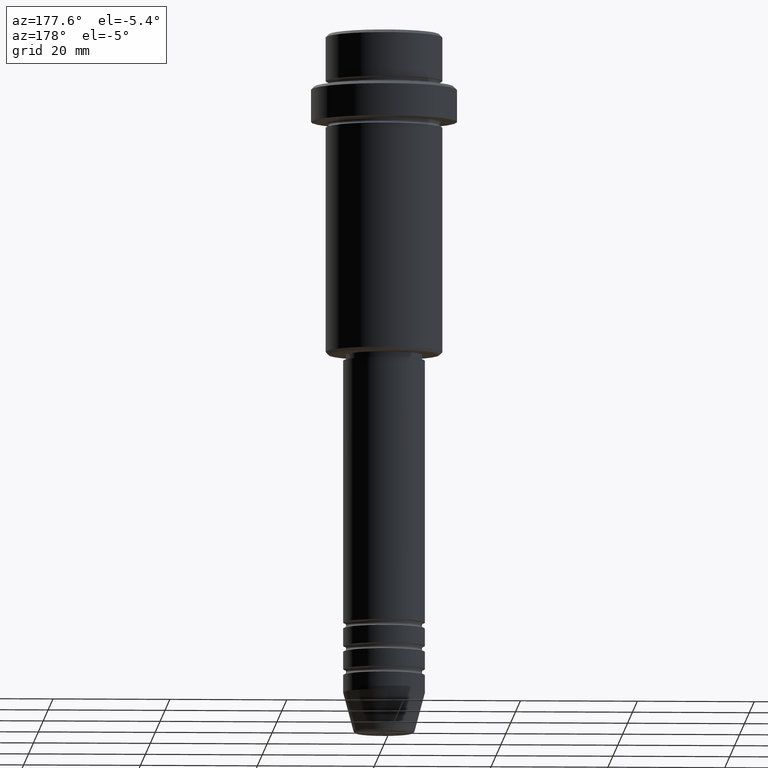
[diagram: clean part render]
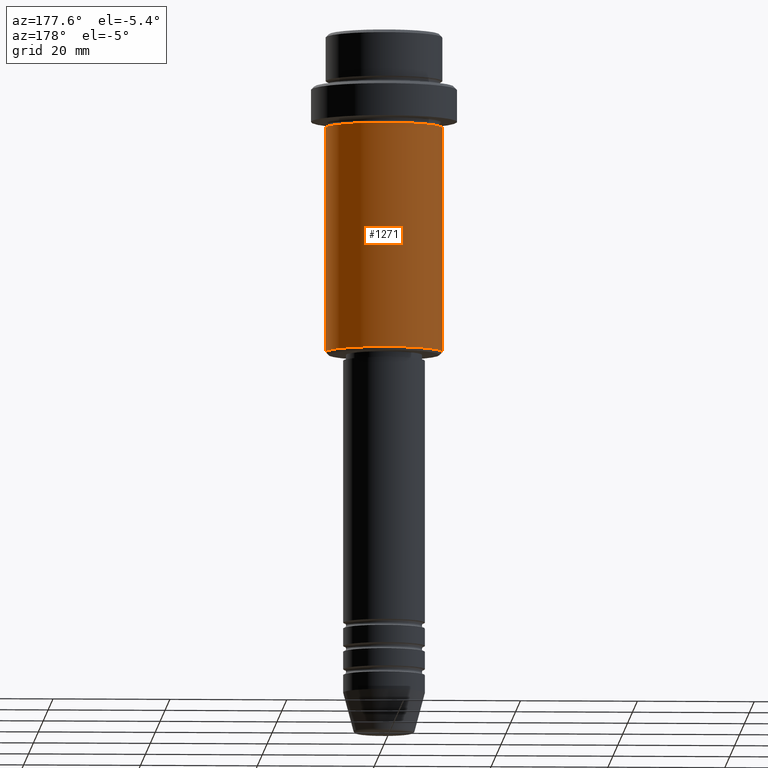
[diagram: same view with one face highlighted and labeled with its STEP entity id]
A machine part, auxiliary view. The second image highlights one B-rep face of the part: STEP entity #1271.
In plain terms, the highlighted cylindrical surface (partial cylindrical patch) has radius 10 mm, axis along (-0, -0, 1).
Its self-contained STEP definition (entity closure, byte-faithful):
#58 = LINE ( 'NONE', #888, #428 ) ;
#188 = CARTESIAN_POINT ( 'NONE',  ( 9.999999999999998224, 0.000000000000000000, -54.49999999999999289 ) ) ;
#215 = VERTEX_POINT ( 'NONE', #646 ) ;
#235 = DIRECTION ( 'NONE',  ( 1.000000000000000000, 0.000000000000000000, 0.000000000000000000 ) ) ;
#279 = CARTESIAN_POINT ( 'NONE',  ( 0.000000000000000000, 0.000000000000000000, -54.49999999999999289 ) ) ;
#295 = DIRECTION ( 'NONE',  ( -0.000000000000000000, -0.000000000000000000, 1.000000000000000000 ) ) ;
#358 = CARTESIAN_POINT ( 'NONE',  ( -9.999999999999998224, 1.224646799147353059E-15, 0.000000000000000000 ) ) ;
#365 = ORIENTED_EDGE ( 'NONE', *, *, #1238, .F. ) ;
#366 = CARTESIAN_POINT ( 'NONE',  ( 0.000000000000000000, 0.000000000000000000, -16.00000000000000000 ) ) ;
#428 = VECTOR ( 'NONE', #1331, 1000.000000000000000 ) ;
#443 = ORIENTED_EDGE ( 'NONE', *, *, #1042, .T. ) ;
#486 = VERTEX_POINT ( 'NONE', #699 ) ;
#501 = CARTESIAN_POINT ( 'NONE',  ( 0.000000000000000000, 0.000000000000000000, 0.000000000000000000 ) ) ;
#557 = CIRCLE ( 'NONE', #1081, 9.999999999999998224 ) ;
#585 = DIRECTION ( 'NONE',  ( -0.000000000000000000, -0.000000000000000000, 1.000000000000000000 ) ) ;
#633 = EDGE_CURVE ( 'NONE', #486, #215, #886, .T. ) ;
#646 = CARTESIAN_POINT ( 'NONE',  ( -9.999999999999998224, 1.224646799147353059E-15, -16.00000000000000000 ) ) ;
#647 = AXIS2_PLACEMENT_3D ( 'NONE', #501, #295, #932 ) ;
#655 = ORIENTED_EDGE ( 'NONE', *, *, #707, .F. ) ;
#699 = CARTESIAN_POINT ( 'NONE',  ( -9.999999999999998224, 1.224646799147353059E-15, -54.49999999999999289 ) ) ;
#707 = EDGE_CURVE ( 'NONE', #1097, #994, #58, .T. ) ;
#721 = VECTOR ( 'NONE', #1237, 1000.000000000000000 ) ;
#824 = FACE_OUTER_BOUND ( 'NONE', #864, .T. ) ;
#830 = DIRECTION ( 'NONE',  ( -0.000000000000000000, -0.000000000000000000, 1.000000000000000000 ) ) ;
#855 = ORIENTED_EDGE ( 'NONE', *, *, #633, .T. ) ;
#864 = EDGE_LOOP ( 'NONE', ( #443, #855, #365, #655 ) ) ;
#886 = LINE ( 'NONE', #358, #721 ) ;
#888 = CARTESIAN_POINT ( 'NONE',  ( 9.999999999999998224, 0.000000000000000000, 0.000000000000000000 ) ) ;
#932 = DIRECTION ( 'NONE',  ( 1.000000000000000000, 0.000000000000000000, 0.000000000000000000 ) ) ;
#975 = CARTESIAN_POINT ( 'NONE',  ( 9.999999999999998224, 0.000000000000000000, -16.00000000000000000 ) ) ;
#994 = VERTEX_POINT ( 'NONE', #975 ) ;
#1034 = AXIS2_PLACEMENT_3D ( 'NONE', #366, #585, #235 ) ;
#1042 = EDGE_CURVE ( 'NONE', #1097, #486, #557, .T. ) ;
#1081 = AXIS2_PLACEMENT_3D ( 'NONE', #279, #830, #1279 ) ;
#1097 = VERTEX_POINT ( 'NONE', #188 ) ;
#1159 = CYLINDRICAL_SURFACE ( 'NONE', #647, 9.999999999999998224 ) ;
#1237 = DIRECTION ( 'NONE',  ( -0.000000000000000000, -0.000000000000000000, 1.000000000000000000 ) ) ;
#1238 = EDGE_CURVE ( 'NONE', #994, #215, #1383, .T. ) ;
#1271 = ADVANCED_FACE ( 'NONE', ( #824 ), #1159, .T. ) ;
#1279 = DIRECTION ( 'NONE',  ( -1.000000000000000000, 0.000000000000000000, 0.000000000000000000 ) ) ;
#1331 = DIRECTION ( 'NONE',  ( -0.000000000000000000, -0.000000000000000000, 1.000000000000000000 ) ) ;
#1383 = CIRCLE ( 'NONE', #1034, 9.999999999999998224 ) ;